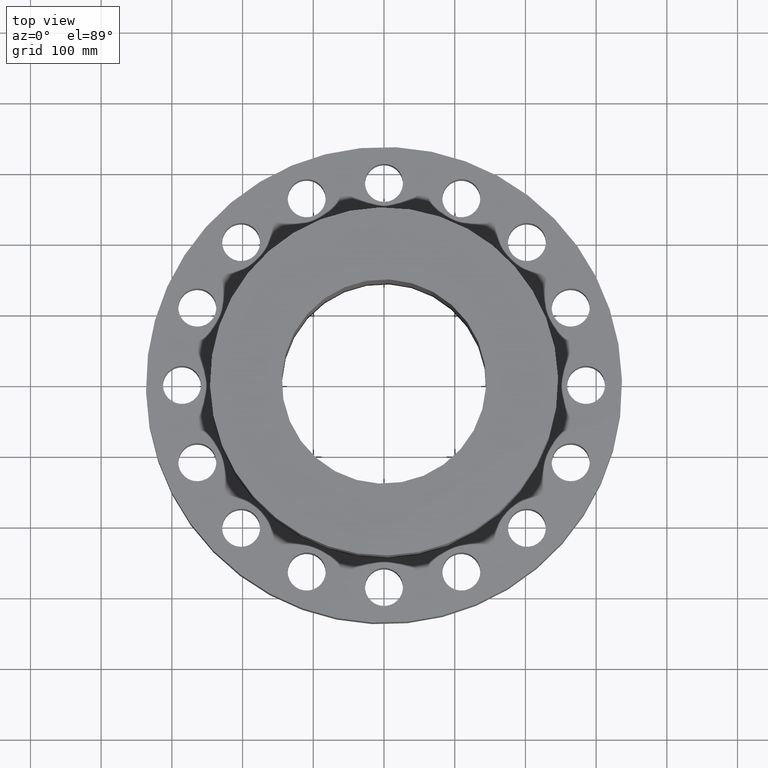
[diagram: clean part render]
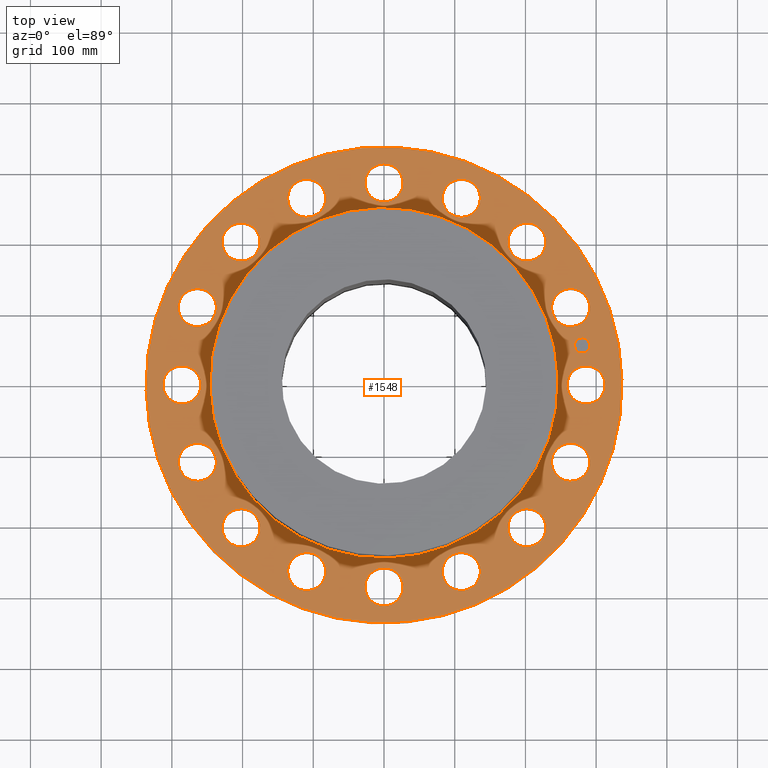
[diagram: same view with one face highlighted and labeled with its STEP entity id]
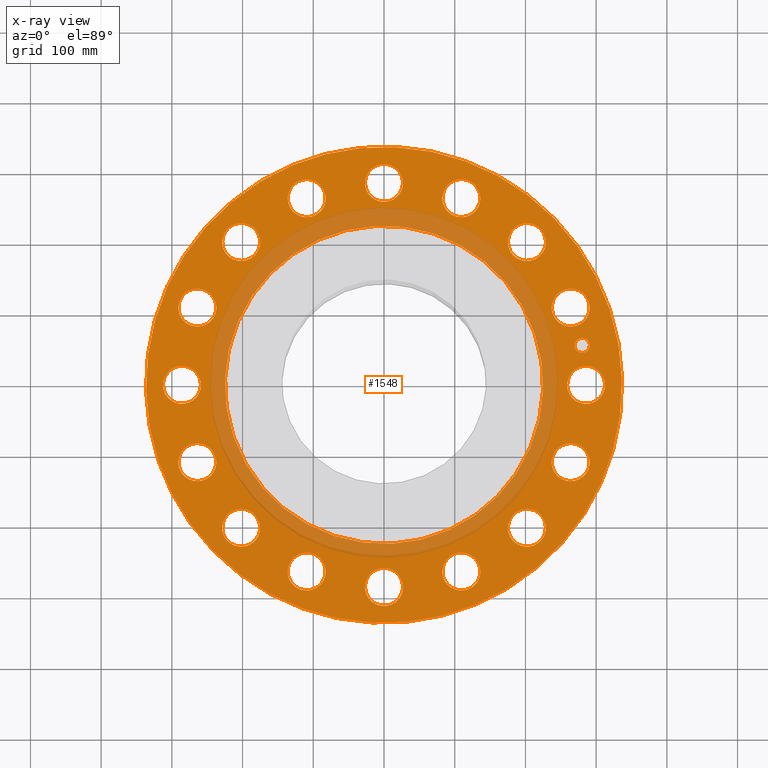
[diagram: x-ray of the same camera — body ghosted, the highlighted face saturated]
A machine part, top view. The second image highlights one B-rep face of the part: STEP entity #1548.
The next image is the same camera in x-ray: the body ghosted, the highlighted face saturated — about 20% of this face is hidden behind the body in this view.
In plain terms, the highlighted planar face has unit normal (0, 0, -1).
Its self-contained STEP definition (entity closure, byte-faithful):
#51=AXIS2_PLACEMENT_3D('Circle Axis2P3D',#49,#50,$) ;
#398=AXIS2_PLACEMENT_3D('Circle Axis2P3D',#396,#397,$) ;
#422=AXIS2_PLACEMENT_3D('Circle Axis2P3D',#420,#421,$) ;
#441=AXIS2_PLACEMENT_3D('Circle Axis2P3D',#439,#440,$) ;
#458=AXIS2_PLACEMENT_3D('Circle Axis2P3D',#456,#457,$) ;
#493=AXIS2_PLACEMENT_3D('Circle Axis2P3D',#491,#492,$) ;
#822=AXIS2_PLACEMENT_3D('Circle Axis2P3D',#820,#821,$) ;
#841=AXIS2_PLACEMENT_3D('Circle Axis2P3D',#839,#840,$) ;
#865=AXIS2_PLACEMENT_3D('Circle Axis2P3D',#863,#864,$) ;
#884=AXIS2_PLACEMENT_3D('Circle Axis2P3D',#882,#883,$) ;
#908=AXIS2_PLACEMENT_3D('Circle Axis2P3D',#906,#907,$) ;
#927=AXIS2_PLACEMENT_3D('Circle Axis2P3D',#925,#926,$) ;
#951=AXIS2_PLACEMENT_3D('Circle Axis2P3D',#949,#950,$) ;
#970=AXIS2_PLACEMENT_3D('Circle Axis2P3D',#968,#969,$) ;
#994=AXIS2_PLACEMENT_3D('Circle Axis2P3D',#992,#993,$) ;
#1013=AXIS2_PLACEMENT_3D('Circle Axis2P3D',#1011,#1012,$) ;
#1037=AXIS2_PLACEMENT_3D('Circle Axis2P3D',#1035,#1036,$) ;
#1056=AXIS2_PLACEMENT_3D('Circle Axis2P3D',#1054,#1055,$) ;
#1080=AXIS2_PLACEMENT_3D('Circle Axis2P3D',#1078,#1079,$) ;
#1099=AXIS2_PLACEMENT_3D('Circle Axis2P3D',#1097,#1098,$) ;
#1123=AXIS2_PLACEMENT_3D('Circle Axis2P3D',#1121,#1122,$) ;
#1142=AXIS2_PLACEMENT_3D('Circle Axis2P3D',#1140,#1141,$) ;
#1166=AXIS2_PLACEMENT_3D('Circle Axis2P3D',#1164,#1165,$) ;
#1185=AXIS2_PLACEMENT_3D('Circle Axis2P3D',#1183,#1184,$) ;
#1209=AXIS2_PLACEMENT_3D('Circle Axis2P3D',#1207,#1208,$) ;
#1228=AXIS2_PLACEMENT_3D('Circle Axis2P3D',#1226,#1227,$) ;
#1252=AXIS2_PLACEMENT_3D('Circle Axis2P3D',#1250,#1251,$) ;
#1271=AXIS2_PLACEMENT_3D('Circle Axis2P3D',#1269,#1270,$) ;
#1295=AXIS2_PLACEMENT_3D('Circle Axis2P3D',#1293,#1294,$) ;
#1314=AXIS2_PLACEMENT_3D('Circle Axis2P3D',#1312,#1313,$) ;
#1338=AXIS2_PLACEMENT_3D('Circle Axis2P3D',#1336,#1337,$) ;
#1357=AXIS2_PLACEMENT_3D('Circle Axis2P3D',#1355,#1356,$) ;
#1381=AXIS2_PLACEMENT_3D('Circle Axis2P3D',#1379,#1380,$) ;
#1400=AXIS2_PLACEMENT_3D('Circle Axis2P3D',#1398,#1399,$) ;
#1424=AXIS2_PLACEMENT_3D('Circle Axis2P3D',#1422,#1423,$) ;
#1443=AXIS2_PLACEMENT_3D('Circle Axis2P3D',#1441,#1442,$) ;
#1456=AXIS2_PLACEMENT_3D('Plane Axis2P3D',#1453,#1454,#1455) ;
#1532=AXIS2_PLACEMENT_3D('Circle Axis2P3D',#1530,#1531,$) ;
#1541=AXIS2_PLACEMENT_3D('Circle Axis2P3D',#1539,#1540,$) ;
#44=CARTESIAN_POINT('Vertex',(10.3197624844,-0.508191070922,4.88000000002)) ;
#49=CARTESIAN_POINT('Axis2P3D Location',(11.25,0.,4.88000000002)) ;
#53=CARTESIAN_POINT('Vertex',(12.1802375157,0.508191070922,4.88000000002)) ;
#396=CARTESIAN_POINT('Axis2P3D Location',(11.25,0.,4.88000000002)) ;
#417=CARTESIAN_POINT('Vertex',(-6.35238838653,-11.6279689451,4.88000000002)) ;
#420=CARTESIAN_POINT('Axis2P3D Location',(0.,0.,4.88000000002)) ;
#424=CARTESIAN_POINT('Vertex',(6.35238838653,11.6279689451,4.88000000002)) ;
#439=CARTESIAN_POINT('Axis2P3D Location',(0.,0.,4.88000000002)) ;
#456=CARTESIAN_POINT('Axis2P3D Location',(0.,0.,4.88000000002)) ;
#460=CARTESIAN_POINT('Vertex',(4.24771027205,7.77538149838,4.88000000002)) ;
#462=CARTESIAN_POINT('Vertex',(-4.24771027205,-7.77538149838,4.88000000002)) ;
#491=CARTESIAN_POINT('Axis2P3D Location',(0.,0.,4.88000000002)) ;
#817=CARTESIAN_POINT('Vertex',(9.33974103643,-4.41870945777,4.88000000002)) ;
#820=CARTESIAN_POINT('Axis2P3D Location',(10.3936447408,-4.30518861412,4.88000000002)) ;
#824=CARTESIAN_POINT('Vertex',(11.4475484452,-4.19166777048,4.88000000002)) ;
#839=CARTESIAN_POINT('Axis2P3D Location',(10.3936447408,-4.30518861412,4.88000000002)) ;
#860=CARTESIAN_POINT('Vertex',(6.93782868059,-7.65651938537,4.88000000002)) ;
#863=CARTESIAN_POINT('Axis2P3D Location',(7.95495128838,-7.95495128838,4.88000000002)) ;
#867=CARTESIAN_POINT('Vertex',(8.97207389617,-8.25338319139,4.88000000002)) ;
#882=CARTESIAN_POINT('Axis2P3D Location',(7.95495128838,-7.95495128838,4.88000000002)) ;
#903=CARTESIAN_POINT('Vertex',(3.47969479971,-9.72869364307,4.88000000002)) ;
#906=CARTESIAN_POINT('Axis2P3D Location',(4.30518861412,-10.3936447408,4.88000000002)) ;
#910=CARTESIAN_POINT('Vertex',(5.13068242854,-11.0585958385,4.88000000002)) ;
#925=CARTESIAN_POINT('Axis2P3D Location',(4.30518861412,-10.3936447408,4.88000000002)) ;
#946=CARTESIAN_POINT('Vertex',(-0.508191070922,-10.3197624844,4.88000000002)) ;
#949=CARTESIAN_POINT('Axis2P3D Location',(-1.54906605189E-015,-11.25,4.88000000002)) ;
#953=CARTESIAN_POINT('Vertex',(0.508191070922,-12.1802375157,4.88000000002)) ;
#968=CARTESIAN_POINT('Axis2P3D Location',(-1.54906605189E-015,-11.25,4.88000000002)) ;
#989=CARTESIAN_POINT('Vertex',(-4.41870945777,-9.33974103643,4.88000000002)) ;
#992=CARTESIAN_POINT('Axis2P3D Location',(-4.30518861412,-10.3936447408,4.88000000002)) ;
#996=CARTESIAN_POINT('Vertex',(-4.19166777048,-11.4475484452,4.88000000002)) ;
#1011=CARTESIAN_POINT('Axis2P3D Location',(-4.30518861412,-10.3936447408,4.88000000002)) ;
#1032=CARTESIAN_POINT('Vertex',(-7.65651938537,-6.93782868059,4.88000000002)) ;
#1035=CARTESIAN_POINT('Axis2P3D Location',(-7.95495128838,-7.95495128838,4.88000000002)) ;
#1039=CARTESIAN_POINT('Vertex',(-8.25338319139,-8.97207389617,4.88000000002)) ;
#1054=CARTESIAN_POINT('Axis2P3D Location',(-7.95495128838,-7.95495128838,4.88000000002)) ;
#1075=CARTESIAN_POINT('Vertex',(-9.72869364307,-3.47969479971,4.88000000002)) ;
#1078=CARTESIAN_POINT('Axis2P3D Location',(-10.3936447408,-4.30518861412,4.88000000002)) ;
#1082=CARTESIAN_POINT('Vertex',(-11.0585958385,-5.13068242854,4.88000000002)) ;
#1097=CARTESIAN_POINT('Axis2P3D Location',(-10.3936447408,-4.30518861412,4.88000000002)) ;
#1118=CARTESIAN_POINT('Vertex',(-10.3197624844,0.508191070922,4.88000000002)) ;
#1121=CARTESIAN_POINT('Axis2P3D Location',(-11.25,-1.37772764905E-015,4.88000000002)) ;
#1125=CARTESIAN_POINT('Vertex',(-12.1802375157,-0.508191070922,4.88000000002)) ;
#1140=CARTESIAN_POINT('Axis2P3D Location',(-11.25,-1.37772764905E-015,4.88000000002)) ;
#1161=CARTESIAN_POINT('Vertex',(-9.33974103643,4.41870945777,4.88000000002)) ;
#1164=CARTESIAN_POINT('Axis2P3D Location',(-10.3936447408,4.30518861412,4.88000000002)) ;
#1168=CARTESIAN_POINT('Vertex',(-11.4475484452,4.19166777048,4.88000000002)) ;
#1183=CARTESIAN_POINT('Axis2P3D Location',(-10.3936447408,4.30518861412,4.88000000002)) ;
#1204=CARTESIAN_POINT('Vertex',(-6.93782868059,7.65651938537,4.88000000002)) ;
#1207=CARTESIAN_POINT('Axis2P3D Location',(-7.95495128838,7.95495128838,4.88000000002)) ;
#1211=CARTESIAN_POINT('Vertex',(-8.97207389617,8.25338319139,4.88000000002)) ;
#1226=CARTESIAN_POINT('Axis2P3D Location',(-7.95495128838,7.95495128838,4.88000000002)) ;
#1247=CARTESIAN_POINT('Vertex',(-3.47969479971,9.72869364307,4.88000000002)) ;
#1250=CARTESIAN_POINT('Axis2P3D Location',(-4.30518861412,10.3936447408,4.88000000002)) ;
#1254=CARTESIAN_POINT('Vertex',(-5.13068242854,11.0585958385,4.88000000002)) ;
#1269=CARTESIAN_POINT('Axis2P3D Location',(-4.30518861412,10.3936447408,4.88000000002)) ;
#1290=CARTESIAN_POINT('Vertex',(0.508191070922,10.3197624844,4.88000000002)) ;
#1293=CARTESIAN_POINT('Axis2P3D Location',(-2.06659147357E-015,11.25,4.88000000002)) ;
#1297=CARTESIAN_POINT('Vertex',(-0.508191070922,12.1802375157,4.88000000002)) ;
#1312=CARTESIAN_POINT('Axis2P3D Location',(-2.06659147357E-015,11.25,4.88000000002)) ;
#1333=CARTESIAN_POINT('Vertex',(4.41870945777,9.33974103643,4.88000000002)) ;
#1336=CARTESIAN_POINT('Axis2P3D Location',(4.30518861412,10.3936447408,4.88000000002)) ;
#1340=CARTESIAN_POINT('Vertex',(4.19166777048,11.4475484452,4.88000000002)) ;
#1355=CARTESIAN_POINT('Axis2P3D Location',(4.30518861412,10.3936447408,4.88000000002)) ;
#1376=CARTESIAN_POINT('Vertex',(7.65651938537,6.93782868059,4.88000000002)) ;
#1379=CARTESIAN_POINT('Axis2P3D Location',(7.95495128838,7.95495128838,4.88000000002)) ;
#1383=CARTESIAN_POINT('Vertex',(8.25338319139,8.97207389617,4.88000000002)) ;
#1398=CARTESIAN_POINT('Axis2P3D Location',(7.95495128838,7.95495128838,4.88000000002)) ;
#1419=CARTESIAN_POINT('Vertex',(9.72869364307,3.47969479971,4.88000000002)) ;
#1422=CARTESIAN_POINT('Axis2P3D Location',(10.3936447408,4.30518861412,4.88000000002)) ;
#1426=CARTESIAN_POINT('Vertex',(11.0585958385,5.13068242854,4.88000000002)) ;
#1441=CARTESIAN_POINT('Axis2P3D Location',(10.3936447408,4.30518861412,4.88000000002)) ;
#1453=CARTESIAN_POINT('Axis2P3D Location',(0.,13.2500000001,4.88000000002)) ;
#1530=CARTESIAN_POINT('Axis2P3D Location',(11.0338344046,2.19476612269,4.88000000002)) ;
#1534=CARTESIAN_POINT('Vertex',(11.1167477906,1.77793238269,4.88000000002)) ;
#1536=CARTESIAN_POINT('Vertex',(10.9509210186,2.61159986269,4.88000000002)) ;
#1539=CARTESIAN_POINT('Axis2P3D Location',(11.0338344046,2.19476612269,4.88000000002)) ;
#50=DIRECTION('Axis2P3D Direction',(0.,-0.,0.0393700787402)) ;
#397=DIRECTION('Axis2P3D Direction',(0.,-0.,0.0393700787402)) ;
#421=DIRECTION('Axis2P3D Direction',(0.,0.,-0.0393700787402)) ;
#440=DIRECTION('Axis2P3D Direction',(0.,0.,-0.0393700787402)) ;
#457=DIRECTION('Axis2P3D Direction',(0.,0.,-0.0393700787402)) ;
#492=DIRECTION('Axis2P3D Direction',(0.,0.,-0.0393700787402)) ;
#821=DIRECTION('Axis2P3D Direction',(-0.,0.,0.0393700787402)) ;
#840=DIRECTION('Axis2P3D Direction',(-0.,0.,0.0393700787402)) ;
#864=DIRECTION('Axis2P3D Direction',(-0.,0.,0.0393700787402)) ;
#883=DIRECTION('Axis2P3D Direction',(-0.,0.,0.0393700787402)) ;
#907=DIRECTION('Axis2P3D Direction',(-0.,0.,0.0393700787402)) ;
#926=DIRECTION('Axis2P3D Direction',(-0.,0.,0.0393700787402)) ;
#950=DIRECTION('Axis2P3D Direction',(-0.,0.,0.0393700787402)) ;
#969=DIRECTION('Axis2P3D Direction',(-0.,0.,0.0393700787402)) ;
#993=DIRECTION('Axis2P3D Direction',(0.,0.,0.0393700787402)) ;
#1012=DIRECTION('Axis2P3D Direction',(0.,0.,0.0393700787402)) ;
#1036=DIRECTION('Axis2P3D Direction',(0.,0.,0.0393700787402)) ;
#1055=DIRECTION('Axis2P3D Direction',(0.,0.,0.0393700787402)) ;
#1079=DIRECTION('Axis2P3D Direction',(0.,0.,0.0393700787402)) ;
#1098=DIRECTION('Axis2P3D Direction',(0.,0.,0.0393700787402)) ;
#1122=DIRECTION('Axis2P3D Direction',(0.,0.,0.0393700787402)) ;
#1141=DIRECTION('Axis2P3D Direction',(0.,0.,0.0393700787402)) ;
#1165=DIRECTION('Axis2P3D Direction',(0.,0.,0.0393700787402)) ;
#1184=DIRECTION('Axis2P3D Direction',(0.,0.,0.0393700787402)) ;
#1208=DIRECTION('Axis2P3D Direction',(0.,0.,0.0393700787402)) ;
#1227=DIRECTION('Axis2P3D Direction',(0.,0.,0.0393700787402)) ;
#1251=DIRECTION('Axis2P3D Direction',(0.,0.,0.0393700787402)) ;
#1270=DIRECTION('Axis2P3D Direction',(0.,0.,0.0393700787402)) ;
#1294=DIRECTION('Axis2P3D Direction',(0.,0.,0.0393700787402)) ;
#1313=DIRECTION('Axis2P3D Direction',(0.,0.,0.0393700787402)) ;
#1337=DIRECTION('Axis2P3D Direction',(0.,-0.,0.0393700787402)) ;
#1356=DIRECTION('Axis2P3D Direction',(0.,-0.,0.0393700787402)) ;
#1380=DIRECTION('Axis2P3D Direction',(0.,-0.,0.0393700787402)) ;
#1399=DIRECTION('Axis2P3D Direction',(0.,-0.,0.0393700787402)) ;
#1423=DIRECTION('Axis2P3D Direction',(0.,-0.,0.0393700787402)) ;
#1442=DIRECTION('Axis2P3D Direction',(0.,-0.,0.0393700787402)) ;
#1454=DIRECTION('Axis2P3D Direction',(0.,0.,-0.0393700787402)) ;
#1455=DIRECTION('Axis2P3D XDirection',(0.0393700787402,0.,0.)) ;
#1531=DIRECTION('Axis2P3D Direction',(0.,0.,-0.0393700787402)) ;
#1540=DIRECTION('Axis2P3D Direction',(0.,0.,-0.0393700787402)) ;
#1459=ORIENTED_EDGE('',*,*,#443,.F.) ;
#1460=ORIENTED_EDGE('',*,*,#426,.F.) ;
#1463=ORIENTED_EDGE('',*,*,#55,.T.) ;
#1464=ORIENTED_EDGE('',*,*,#400,.T.) ;
#1467=ORIENTED_EDGE('',*,*,#495,.T.) ;
#1468=ORIENTED_EDGE('',*,*,#464,.T.) ;
#1471=ORIENTED_EDGE('',*,*,#843,.T.) ;
#1472=ORIENTED_EDGE('',*,*,#826,.T.) ;
#1475=ORIENTED_EDGE('',*,*,#886,.T.) ;
#1476=ORIENTED_EDGE('',*,*,#869,.T.) ;
#1479=ORIENTED_EDGE('',*,*,#929,.T.) ;
#1480=ORIENTED_EDGE('',*,*,#912,.T.) ;
#1483=ORIENTED_EDGE('',*,*,#972,.T.) ;
#1484=ORIENTED_EDGE('',*,*,#955,.T.) ;
#1487=ORIENTED_EDGE('',*,*,#1015,.T.) ;
#1488=ORIENTED_EDGE('',*,*,#998,.T.) ;
#1491=ORIENTED_EDGE('',*,*,#1058,.T.) ;
#1492=ORIENTED_EDGE('',*,*,#1041,.T.) ;
#1495=ORIENTED_EDGE('',*,*,#1101,.T.) ;
#1496=ORIENTED_EDGE('',*,*,#1084,.T.) ;
#1499=ORIENTED_EDGE('',*,*,#1144,.T.) ;
#1500=ORIENTED_EDGE('',*,*,#1127,.T.) ;
#1503=ORIENTED_EDGE('',*,*,#1187,.T.) ;
#1504=ORIENTED_EDGE('',*,*,#1170,.T.) ;
#1507=ORIENTED_EDGE('',*,*,#1230,.T.) ;
#1508=ORIENTED_EDGE('',*,*,#1213,.T.) ;
#1511=ORIENTED_EDGE('',*,*,#1273,.T.) ;
#1512=ORIENTED_EDGE('',*,*,#1256,.T.) ;
#1515=ORIENTED_EDGE('',*,*,#1316,.T.) ;
#1516=ORIENTED_EDGE('',*,*,#1299,.T.) ;
#1519=ORIENTED_EDGE('',*,*,#1359,.T.) ;
#1520=ORIENTED_EDGE('',*,*,#1342,.T.) ;
#1523=ORIENTED_EDGE('',*,*,#1402,.T.) ;
#1524=ORIENTED_EDGE('',*,*,#1385,.T.) ;
#1527=ORIENTED_EDGE('',*,*,#1445,.T.) ;
#1528=ORIENTED_EDGE('',*,*,#1428,.T.) ;
#1545=ORIENTED_EDGE('',*,*,#1538,.F.) ;
#1546=ORIENTED_EDGE('',*,*,#1543,.F.) ;
#1465=FACE_BOUND('',#1462,.T.) ;
#1469=FACE_BOUND('',#1466,.T.) ;
#1473=FACE_BOUND('',#1470,.T.) ;
#1477=FACE_BOUND('',#1474,.T.) ;
#1481=FACE_BOUND('',#1478,.T.) ;
#1485=FACE_BOUND('',#1482,.T.) ;
#1489=FACE_BOUND('',#1486,.T.) ;
#1493=FACE_BOUND('',#1490,.T.) ;
#1497=FACE_BOUND('',#1494,.T.) ;
#1501=FACE_BOUND('',#1498,.T.) ;
#1505=FACE_BOUND('',#1502,.T.) ;
#1509=FACE_BOUND('',#1506,.T.) ;
#1513=FACE_BOUND('',#1510,.T.) ;
#1517=FACE_BOUND('',#1514,.T.) ;
#1521=FACE_BOUND('',#1518,.T.) ;
#1525=FACE_BOUND('',#1522,.T.) ;
#1529=FACE_BOUND('',#1526,.T.) ;
#1547=FACE_BOUND('',#1544,.T.) ;
#1548=ADVANCED_FACE('PartBody',(#1461,#1465,#1469,#1473,#1477,#1481,#1485,#1489,#1493,#1497,#1501,#1505,#1509,#1513,#1517,#1521,#1525,#1529,#1547),#1457,.F.) ;
#52=CIRCLE('generated circle',#51,1.06) ;
#399=CIRCLE('generated circle',#398,1.06) ;
#423=CIRCLE('generated circle',#422,13.2500000001) ;
#442=CIRCLE('generated circle',#441,13.2500000001) ;
#459=CIRCLE('generated circle',#458,8.86000000004) ;
#494=CIRCLE('generated circle',#493,8.86000000004) ;
#823=CIRCLE('generated circle',#822,1.06) ;
#842=CIRCLE('generated circle',#841,1.06) ;
#866=CIRCLE('generated circle',#865,1.06) ;
#885=CIRCLE('generated circle',#884,1.06) ;
#909=CIRCLE('generated circle',#908,1.06) ;
#928=CIRCLE('generated circle',#927,1.06) ;
#952=CIRCLE('generated circle',#951,1.06) ;
#971=CIRCLE('generated circle',#970,1.06) ;
#995=CIRCLE('generated circle',#994,1.06) ;
#1014=CIRCLE('generated circle',#1013,1.06) ;
#1038=CIRCLE('generated circle',#1037,1.06) ;
#1057=CIRCLE('generated circle',#1056,1.06) ;
#1081=CIRCLE('generated circle',#1080,1.06) ;
#1100=CIRCLE('generated circle',#1099,1.06) ;
#1124=CIRCLE('generated circle',#1123,1.06) ;
#1143=CIRCLE('generated circle',#1142,1.06) ;
#1167=CIRCLE('generated circle',#1166,1.06) ;
#1186=CIRCLE('generated circle',#1185,1.06) ;
#1210=CIRCLE('generated circle',#1209,1.06) ;
#1229=CIRCLE('generated circle',#1228,1.06) ;
#1253=CIRCLE('generated circle',#1252,1.06) ;
#1272=CIRCLE('generated circle',#1271,1.06) ;
#1296=CIRCLE('generated circle',#1295,1.06) ;
#1315=CIRCLE('generated circle',#1314,1.06) ;
#1339=CIRCLE('generated circle',#1338,1.06) ;
#1358=CIRCLE('generated circle',#1357,1.06) ;
#1382=CIRCLE('generated circle',#1381,1.06) ;
#1401=CIRCLE('generated circle',#1400,1.06) ;
#1425=CIRCLE('generated circle',#1424,1.06) ;
#1444=CIRCLE('generated circle',#1443,1.06) ;
#1533=CIRCLE('generated circle',#1532,0.424999995752) ;
#1542=CIRCLE('generated circle',#1541,0.424999995752) ;
#55=EDGE_CURVE('',#54,#45,#52,.F.) ;
#400=EDGE_CURVE('',#45,#54,#399,.F.) ;
#426=EDGE_CURVE('',#418,#425,#423,.T.) ;
#443=EDGE_CURVE('',#425,#418,#442,.T.) ;
#464=EDGE_CURVE('',#461,#463,#459,.T.) ;
#495=EDGE_CURVE('',#463,#461,#494,.T.) ;
#826=EDGE_CURVE('',#825,#818,#823,.F.) ;
#843=EDGE_CURVE('',#818,#825,#842,.F.) ;
#869=EDGE_CURVE('',#868,#861,#866,.F.) ;
#886=EDGE_CURVE('',#861,#868,#885,.F.) ;
#912=EDGE_CURVE('',#911,#904,#909,.F.) ;
#929=EDGE_CURVE('',#904,#911,#928,.F.) ;
#955=EDGE_CURVE('',#954,#947,#952,.F.) ;
#972=EDGE_CURVE('',#947,#954,#971,.F.) ;
#998=EDGE_CURVE('',#997,#990,#995,.F.) ;
#1015=EDGE_CURVE('',#990,#997,#1014,.F.) ;
#1041=EDGE_CURVE('',#1040,#1033,#1038,.F.) ;
#1058=EDGE_CURVE('',#1033,#1040,#1057,.F.) ;
#1084=EDGE_CURVE('',#1083,#1076,#1081,.F.) ;
#1101=EDGE_CURVE('',#1076,#1083,#1100,.F.) ;
#1127=EDGE_CURVE('',#1126,#1119,#1124,.F.) ;
#1144=EDGE_CURVE('',#1119,#1126,#1143,.F.) ;
#1170=EDGE_CURVE('',#1169,#1162,#1167,.F.) ;
#1187=EDGE_CURVE('',#1162,#1169,#1186,.F.) ;
#1213=EDGE_CURVE('',#1212,#1205,#1210,.F.) ;
#1230=EDGE_CURVE('',#1205,#1212,#1229,.F.) ;
#1256=EDGE_CURVE('',#1255,#1248,#1253,.F.) ;
#1273=EDGE_CURVE('',#1248,#1255,#1272,.F.) ;
#1299=EDGE_CURVE('',#1298,#1291,#1296,.F.) ;
#1316=EDGE_CURVE('',#1291,#1298,#1315,.F.) ;
#1342=EDGE_CURVE('',#1341,#1334,#1339,.F.) ;
#1359=EDGE_CURVE('',#1334,#1341,#1358,.F.) ;
#1385=EDGE_CURVE('',#1384,#1377,#1382,.F.) ;
#1402=EDGE_CURVE('',#1377,#1384,#1401,.F.) ;
#1428=EDGE_CURVE('',#1427,#1420,#1425,.F.) ;
#1445=EDGE_CURVE('',#1420,#1427,#1444,.F.) ;
#1538=EDGE_CURVE('',#1535,#1537,#1533,.F.) ;
#1543=EDGE_CURVE('',#1537,#1535,#1542,.F.) ;
#1458=EDGE_LOOP('',(#1459,#1460)) ;
#1462=EDGE_LOOP('',(#1463,#1464)) ;
#1466=EDGE_LOOP('',(#1467,#1468)) ;
#1470=EDGE_LOOP('',(#1471,#1472)) ;
#1474=EDGE_LOOP('',(#1475,#1476)) ;
#1478=EDGE_LOOP('',(#1479,#1480)) ;
#1482=EDGE_LOOP('',(#1483,#1484)) ;
#1486=EDGE_LOOP('',(#1487,#1488)) ;
#1490=EDGE_LOOP('',(#1491,#1492)) ;
#1494=EDGE_LOOP('',(#1495,#1496)) ;
#1498=EDGE_LOOP('',(#1499,#1500)) ;
#1502=EDGE_LOOP('',(#1503,#1504)) ;
#1506=EDGE_LOOP('',(#1507,#1508)) ;
#1510=EDGE_LOOP('',(#1511,#1512)) ;
#1514=EDGE_LOOP('',(#1515,#1516)) ;
#1518=EDGE_LOOP('',(#1519,#1520)) ;
#1522=EDGE_LOOP('',(#1523,#1524)) ;
#1526=EDGE_LOOP('',(#1527,#1528)) ;
#1544=EDGE_LOOP('',(#1545,#1546)) ;
#1461=FACE_OUTER_BOUND('',#1458,.T.) ;
#1457=PLANE('',#1456) ;
#45=VERTEX_POINT('',#44) ;
#54=VERTEX_POINT('',#53) ;
#418=VERTEX_POINT('',#417) ;
#425=VERTEX_POINT('',#424) ;
#461=VERTEX_POINT('',#460) ;
#463=VERTEX_POINT('',#462) ;
#818=VERTEX_POINT('',#817) ;
#825=VERTEX_POINT('',#824) ;
#861=VERTEX_POINT('',#860) ;
#868=VERTEX_POINT('',#867) ;
#904=VERTEX_POINT('',#903) ;
#911=VERTEX_POINT('',#910) ;
#947=VERTEX_POINT('',#946) ;
#954=VERTEX_POINT('',#953) ;
#990=VERTEX_POINT('',#989) ;
#997=VERTEX_POINT('',#996) ;
#1033=VERTEX_POINT('',#1032) ;
#1040=VERTEX_POINT('',#1039) ;
#1076=VERTEX_POINT('',#1075) ;
#1083=VERTEX_POINT('',#1082) ;
#1119=VERTEX_POINT('',#1118) ;
#1126=VERTEX_POINT('',#1125) ;
#1162=VERTEX_POINT('',#1161) ;
#1169=VERTEX_POINT('',#1168) ;
#1205=VERTEX_POINT('',#1204) ;
#1212=VERTEX_POINT('',#1211) ;
#1248=VERTEX_POINT('',#1247) ;
#1255=VERTEX_POINT('',#1254) ;
#1291=VERTEX_POINT('',#1290) ;
#1298=VERTEX_POINT('',#1297) ;
#1334=VERTEX_POINT('',#1333) ;
#1341=VERTEX_POINT('',#1340) ;
#1377=VERTEX_POINT('',#1376) ;
#1384=VERTEX_POINT('',#1383) ;
#1420=VERTEX_POINT('',#1419) ;
#1427=VERTEX_POINT('',#1426) ;
#1535=VERTEX_POINT('',#1534) ;
#1537=VERTEX_POINT('',#1536) ;